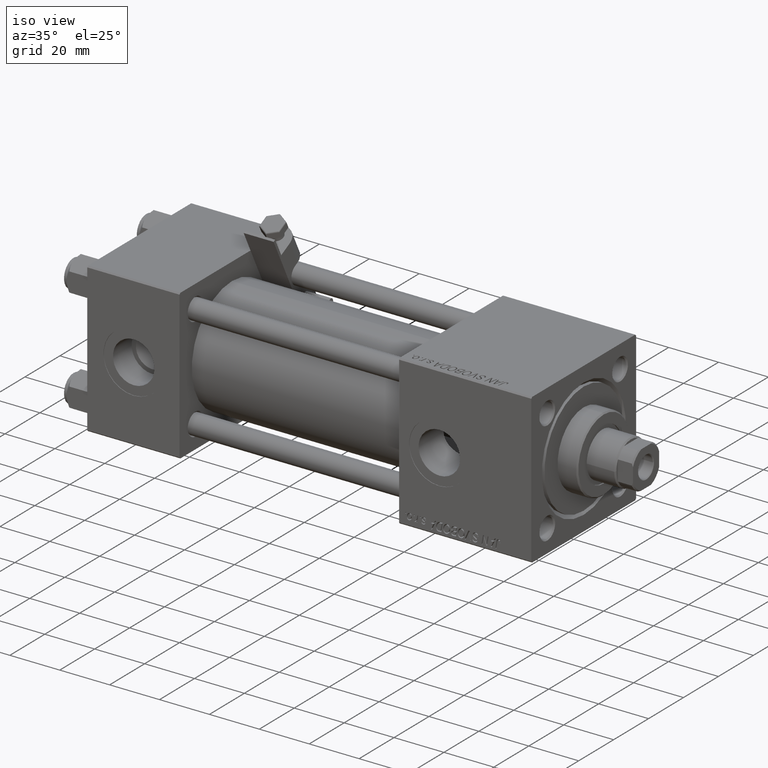
[diagram: clean part render]
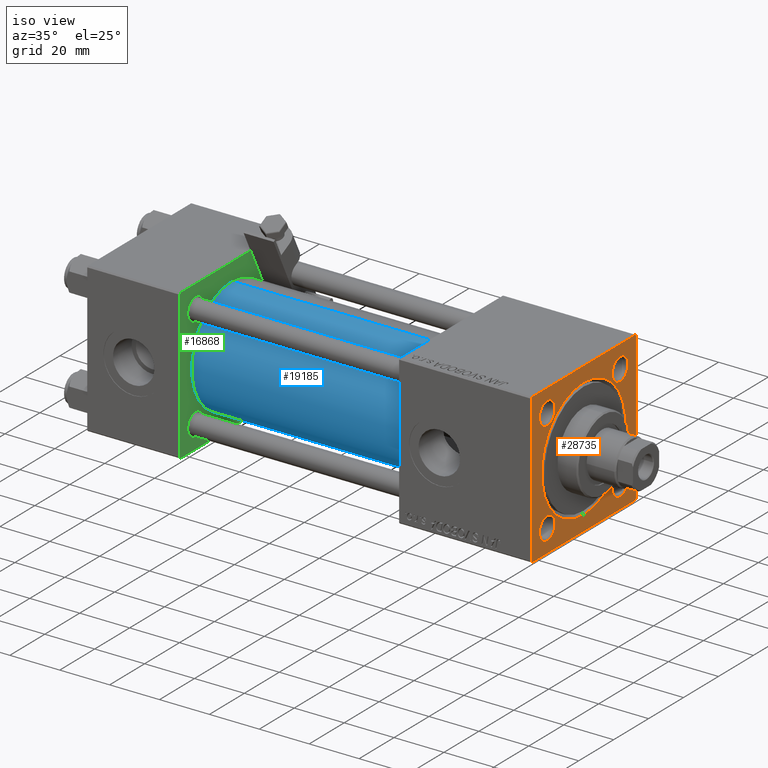
[diagram: same view with three faces highlighted in distinct colors, each labeled with its STEP entity id]
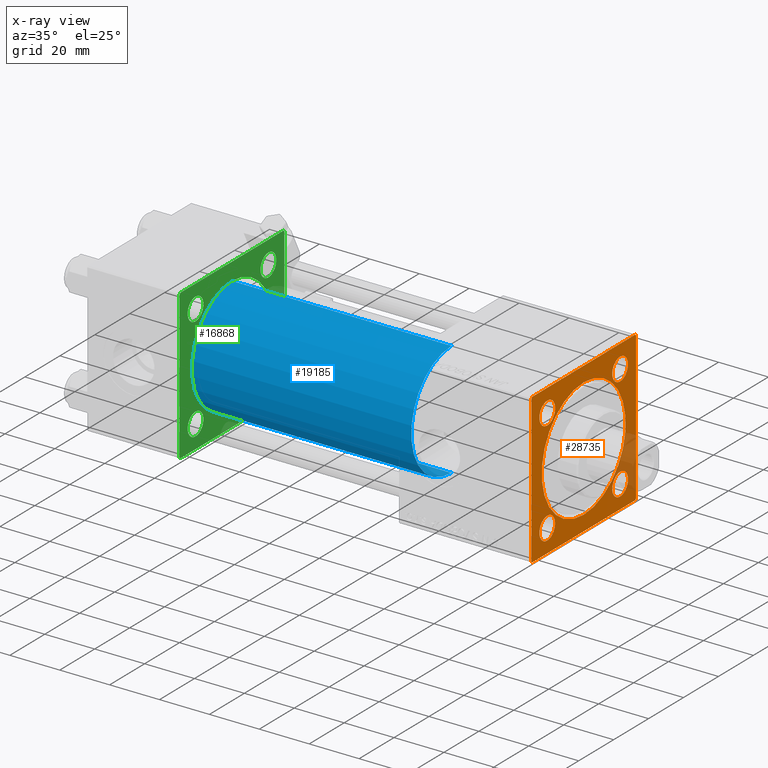
[diagram: x-ray of the same camera — body ghosted, the three highlighted faces saturated]
A machine part, iso view with three faces highlighted in distinct colors.
The next image is the same camera in x-ray (body ghosted, the three faces saturated) — at least one of them is partly hidden behind the body in this view.
Their STEP definitions:

[orange] entity #28735 — the highlighted planar face has unit normal (-1, 0, 0).
#298 = EDGE_CURVE ( 'NONE', #15305, #1166, #24167, .T. ) ;
#885 = VERTEX_POINT ( 'NONE', #18039 ) ;
#1101 = CARTESIAN_POINT ( 'NONE',  ( 178.0000000000000000, 29.49999999999997158, -29.99999999999999289 ) ) ;
#1166 = VERTEX_POINT ( 'NONE', #3669 ) ;
#1480 = VERTEX_POINT ( 'NONE', #7116 ) ;
#1534 = AXIS2_PLACEMENT_3D ( 'NONE', #14978, #42749, #31415 ) ;
#1862 = AXIS2_PLACEMENT_3D ( 'NONE', #2000, #18470, #26821 ) ;
#2000 = CARTESIAN_POINT ( 'NONE',  ( 178.0000000000000000, 20.84999999999999787, 20.85000000000000142 ) ) ;
#2801 = ORIENTED_EDGE ( 'NONE', *, *, #25553, .F. ) ;
#3334 = VECTOR ( 'NONE', #31365, 1000.000000000000000 ) ;
#3370 = EDGE_CURVE ( 'NONE', #37861, #21030, #15692, .T. ) ;
#3371 = DIRECTION ( 'NONE',  ( -0.000000000000000000, 0.000000000000000000, 1.000000000000000000 ) ) ;
#3584 = CARTESIAN_POINT ( 'NONE',  ( 178.0000000000000000, 0.000000000000000000, -23.99999999999999645 ) ) ;
#3669 = CARTESIAN_POINT ( 'NONE',  ( 178.0000000000000000, 30.00000000000000000, -29.49999999999997868 ) ) ;
#3952 = ORIENTED_EDGE ( 'NONE', *, *, #46275, .T. ) ;
#4646 = VERTEX_POINT ( 'NONE', #52857 ) ;
#4659 = DIRECTION ( 'NONE',  ( 0.000000000000000000, -1.000000000000000000, -1.156482317317871478E-16 ) ) ;
#4780 = CARTESIAN_POINT ( 'NONE',  ( 178.0000000000000000, -30.00000000000000000, 29.49999999999999289 ) ) ;
#5016 = ORIENTED_EDGE ( 'NONE', *, *, #31881, .T. ) ;
#5023 = CIRCLE ( 'NONE', #11911, 4.500000000000031974 ) ;
#5660 = AXIS2_PLACEMENT_3D ( 'NONE', #34746, #42843, #21582 ) ;
#6997 = VERTEX_POINT ( 'NONE', #36495 ) ;
#7116 = CARTESIAN_POINT ( 'NONE',  ( 178.0000000000000000, 2.939152317953647500E-15, 23.99999999999999645 ) ) ;
#7398 = CIRCLE ( 'NONE', #40112, 4.500000000000031974 ) ;
#7944 = DIRECTION ( 'NONE',  ( -1.000000000000000000, 0.000000000000000000, -0.000000000000000000 ) ) ;
#8264 = CIRCLE ( 'NONE', #5660, 4.500000000000031974 ) ;
#9997 = LINE ( 'NONE', #26462, #33465 ) ;
#10613 = CARTESIAN_POINT ( 'NONE',  ( 178.0000000000000000, -29.50000000000000000, 29.99999999999999289 ) ) ;
#11179 = FACE_BOUND ( 'NONE', #40923, .T. ) ;
#11716 = CARTESIAN_POINT ( 'NONE',  ( 178.0000000000000000, 0.000000000000000000, 0.000000000000000000 ) ) ;
#11861 = ORIENTED_EDGE ( 'NONE', *, *, #3370, .T. ) ;
#11911 = AXIS2_PLACEMENT_3D ( 'NONE', #50446, #41307, #41573 ) ;
#12866 = DIRECTION ( 'NONE',  ( 0.000000000000000000, 0.000000000000000000, 1.000000000000000000 ) ) ;
#13655 = CARTESIAN_POINT ( 'NONE',  ( 178.0000000000000000, -20.84999999999999432, 20.85000000000000142 ) ) ;
#14518 = CARTESIAN_POINT ( 'NONE',  ( 178.0000000000000000, 20.84999999999999787, 25.35000000000003340 ) ) ;
#14706 = CIRCLE ( 'NONE', #43962, 4.500000000000031974 ) ;
#14978 = CARTESIAN_POINT ( 'NONE',  ( 178.0000000000000000, 0.000000000000000000, 0.000000000000000000 ) ) ;
#15265 = LINE ( 'NONE', #31706, #36336 ) ;
#15305 = VERTEX_POINT ( 'NONE', #1101 ) ;
#15532 = EDGE_CURVE ( 'NONE', #885, #4646, #7398, .T. ) ;
#15692 = CIRCLE ( 'NONE', #1862, 4.500000000000031974 ) ;
#15789 = PLANE ( 'NONE',  #42199 ) ;
#16376 = EDGE_LOOP ( 'NONE', ( #38227, #51896 ) ) ;
#17200 = CARTESIAN_POINT ( 'NONE',  ( 178.0000000000000000, -30.00000000000000000, 29.49999999999999289 ) ) ;
#17379 = VECTOR ( 'NONE', #37157, 1000.000000000000114 ) ;
#17477 = ORIENTED_EDGE ( 'NONE', *, *, #35644, .T. ) ;
#18039 = CARTESIAN_POINT ( 'NONE',  ( 178.0000000000000000, -20.84999999999999432, 25.35000000000003340 ) ) ;
#18232 = DIRECTION ( 'NONE',  ( 0.000000000000000000, 0.000000000000000000, -1.000000000000000000 ) ) ;
#18470 = DIRECTION ( 'NONE',  ( -1.000000000000000000, 0.000000000000000000, -0.000000000000000000 ) ) ;
#18481 = VERTEX_POINT ( 'NONE', #17200 ) ;
#18495 = EDGE_CURVE ( 'NONE', #4646, #885, #47916, .T. ) ;
#18985 = EDGE_LOOP ( 'NONE', ( #3952, #31899 ) ) ;
#19344 = VECTOR ( 'NONE', #20947, 1000.000000000000114 ) ;
#19488 = EDGE_CURVE ( 'NONE', #6997, #32217, #8264, .T. ) ;
#19713 = EDGE_LOOP ( 'NONE', ( #33803, #11861 ) ) ;
#19823 = DIRECTION ( 'NONE',  ( 0.000000000000000000, 0.000000000000000000, 1.000000000000000000 ) ) ;
#19901 = EDGE_LOOP ( 'NONE', ( #5016, #38970, #2801, #37906, #31221, #51496, #31678, #17477 ) ) ;
#20129 = CARTESIAN_POINT ( 'NONE',  ( 178.0000000000000000, 30.00000000000000000, -29.49999999999999289 ) ) ;
#20947 = DIRECTION ( 'NONE',  ( 0.000000000000000000, -0.7071067811865474617, 0.7071067811865474617 ) ) ;
#21005 = CARTESIAN_POINT ( 'NONE',  ( 178.0000000000000000, 20.84999999999999787, -20.85000000000000142 ) ) ;
#21030 = VERTEX_POINT ( 'NONE', #35920 ) ;
#21237 = VERTEX_POINT ( 'NONE', #51419 ) ;
#21466 = VECTOR ( 'NONE', #23798, 1000.000000000000114 ) ;
#21485 = CARTESIAN_POINT ( 'NONE',  ( 178.0000000000000000, -20.84999999999999432, 20.85000000000000142 ) ) ;
#21582 = DIRECTION ( 'NONE',  ( 0.000000000000000000, 0.000000000000000000, 1.000000000000000000 ) ) ;
#21932 = VERTEX_POINT ( 'NONE', #3584 ) ;
#22447 = ORIENTED_EDGE ( 'NONE', *, *, #18495, .T. ) ;
#23013 = CARTESIAN_POINT ( 'NONE',  ( 178.0000000000000000, 30.00000000000000000, 30.00000000000000000 ) ) ;
#23327 = CARTESIAN_POINT ( 'NONE',  ( 178.0000000000000000, -20.85000000000000142, -16.34999999999996945 ) ) ;
#23798 = DIRECTION ( 'NONE',  ( 0.000000000000000000, 0.7071067811865474617, -0.7071067811865474617 ) ) ;
#24167 = LINE ( 'NONE', #20129, #33637 ) ;
#24176 = VERTEX_POINT ( 'NONE', #47052 ) ;
#25038 = DIRECTION ( 'NONE',  ( -1.000000000000000000, 0.000000000000000000, -0.000000000000000000 ) ) ;
#25299 = EDGE_CURVE ( 'NONE', #39896, #33559, #44319, .T. ) ;
#25553 = EDGE_CURVE ( 'NONE', #15305, #21237, #9997, .T. ) ;
#25564 = CARTESIAN_POINT ( 'NONE',  ( 178.0000000000000000, 29.50000000000000000, 30.00000000000000000 ) ) ;
#26462 = CARTESIAN_POINT ( 'NONE',  ( 178.0000000000000000, 30.00000000000000000, -29.99999999999999289 ) ) ;
#26686 = EDGE_CURVE ( 'NONE', #52440, #21237, #31048, .T. ) ;
#26821 = DIRECTION ( 'NONE',  ( 0.000000000000000000, 0.000000000000000000, 1.000000000000000000 ) ) ;
#27144 = EDGE_CURVE ( 'NONE', #1480, #21932, #36135, .T. ) ;
#27366 = VERTEX_POINT ( 'NONE', #23327 ) ;
#28735 = ADVANCED_FACE ( 'NONE', ( #32483, #31406, #43808, #11179, #40049, #40315 ), #15789, .F. ) ;
#29061 = LINE ( 'NONE', #4780, #17379 ) ;
#30109 = DIRECTION ( 'NONE',  ( -1.000000000000000000, 0.000000000000000000, -0.000000000000000000 ) ) ;
#30481 = CIRCLE ( 'NONE', #51144, 4.500000000000031974 ) ;
#31048 = LINE ( 'NONE', #47482, #21466 ) ;
#31221 = ORIENTED_EDGE ( 'NONE', *, *, #35809, .F. ) ;
#31365 = DIRECTION ( 'NONE',  ( 0.000000000000000000, -1.000000000000000000, -1.156482317317871478E-16 ) ) ;
#31406 = FACE_BOUND ( 'NONE', #52620, .T. ) ;
#31415 = DIRECTION ( 'NONE',  ( 0.000000000000000000, 0.000000000000000000, 1.000000000000000000 ) ) ;
#31591 = ORIENTED_EDGE ( 'NONE', *, *, #15532, .T. ) ;
#31678 = ORIENTED_EDGE ( 'NONE', *, *, #25299, .T. ) ;
#31706 = CARTESIAN_POINT ( 'NONE',  ( 178.0000000000000000, 30.00000000000000000, 30.00000000000000000 ) ) ;
#31881 = EDGE_CURVE ( 'NONE', #18481, #52440, #50580, .T. ) ;
#31899 = ORIENTED_EDGE ( 'NONE', *, *, #27144, .T. ) ;
#31976 = DIRECTION ( 'NONE',  ( -0.000000000000000000, 0.7071067811865672237, 0.7071067811865279218 ) ) ;
#32217 = VERTEX_POINT ( 'NONE', #39717 ) ;
#32483 = FACE_BOUND ( 'NONE', #19713, .T. ) ;
#32555 = CIRCLE ( 'NONE', #1534, 23.99999999999999645 ) ;
#33465 = VECTOR ( 'NONE', #4659, 1000.000000000000000 ) ;
#33559 = VERTEX_POINT ( 'NONE', #10613 ) ;
#33573 = VECTOR ( 'NONE', #18232, 1000.000000000000000 ) ;
#33637 = VECTOR ( 'NONE', #31976, 1000.000000000000000 ) ;
#33796 = AXIS2_PLACEMENT_3D ( 'NONE', #44987, #53335, #12866 ) ;
#33803 = ORIENTED_EDGE ( 'NONE', *, *, #46956, .T. ) ;
#33871 = DIRECTION ( 'NONE',  ( -1.000000000000000000, 0.000000000000000000, -0.000000000000000000 ) ) ;
#34037 = EDGE_CURVE ( 'NONE', #32217, #6997, #14706, .T. ) ;
#34746 = CARTESIAN_POINT ( 'NONE',  ( 178.0000000000000000, 20.84999999999999787, -20.85000000000000142 ) ) ;
#35644 = EDGE_CURVE ( 'NONE', #33559, #18481, #29061, .T. ) ;
#35809 = EDGE_CURVE ( 'NONE', #24176, #1166, #15265, .T. ) ;
#35920 = CARTESIAN_POINT ( 'NONE',  ( 178.0000000000000000, 20.84999999999999787, 16.34999999999996945 ) ) ;
#36135 = CIRCLE ( 'NONE', #52495, 23.99999999999999645 ) ;
#36336 = VECTOR ( 'NONE', #48144, 1000.000000000000000 ) ;
#36339 = LINE ( 'NONE', #52779, #19344 ) ;
#36435 = ORIENTED_EDGE ( 'NONE', *, *, #34037, .T. ) ;
#36495 = CARTESIAN_POINT ( 'NONE',  ( 178.0000000000000000, 20.84999999999999787, -16.34999999999996945 ) ) ;
#37157 = DIRECTION ( 'NONE',  ( -0.000000000000000000, -0.7071067811865474617, -0.7071067811865474617 ) ) ;
#37861 = VERTEX_POINT ( 'NONE', #14518 ) ;
#37906 = ORIENTED_EDGE ( 'NONE', *, *, #298, .T. ) ;
#37927 = DIRECTION ( 'NONE',  ( 0.000000000000000000, 0.000000000000000000, 1.000000000000000000 ) ) ;
#37943 = EDGE_CURVE ( 'NONE', #47038, #27366, #38953, .T. ) ;
#38227 = ORIENTED_EDGE ( 'NONE', *, *, #37943, .T. ) ;
#38452 = CARTESIAN_POINT ( 'NONE',  ( 178.0000000000000000, -30.00000000000000000, 29.99999999999999289 ) ) ;
#38953 = CIRCLE ( 'NONE', #33796, 4.500000000000031974 ) ;
#38970 = ORIENTED_EDGE ( 'NONE', *, *, #26686, .T. ) ;
#39249 = ORIENTED_EDGE ( 'NONE', *, *, #19488, .T. ) ;
#39717 = CARTESIAN_POINT ( 'NONE',  ( 178.0000000000000000, 20.84999999999999787, -25.35000000000003340 ) ) ;
#39896 = VERTEX_POINT ( 'NONE', #25564 ) ;
#40049 = FACE_BOUND ( 'NONE', #18985, .T. ) ;
#40112 = AXIS2_PLACEMENT_3D ( 'NONE', #21485, #33871, #37927 ) ;
#40315 = FACE_OUTER_BOUND ( 'NONE', #19901, .T. ) ;
#40923 = EDGE_LOOP ( 'NONE', ( #36435, #39249 ) ) ;
#41307 = DIRECTION ( 'NONE',  ( -1.000000000000000000, 0.000000000000000000, -0.000000000000000000 ) ) ;
#41462 = DIRECTION ( 'NONE',  ( 0.000000000000000000, 0.000000000000000000, 1.000000000000000000 ) ) ;
#41573 = DIRECTION ( 'NONE',  ( 0.000000000000000000, 0.000000000000000000, 1.000000000000000000 ) ) ;
#42199 = AXIS2_PLACEMENT_3D ( 'NONE', #11716, #48390, #3371 ) ;
#42418 = EDGE_CURVE ( 'NONE', #24176, #39896, #36339, .T. ) ;
#42707 = EDGE_CURVE ( 'NONE', #27366, #47038, #30481, .T. ) ;
#42749 = DIRECTION ( 'NONE',  ( -1.000000000000000000, 0.000000000000000000, -0.000000000000000000 ) ) ;
#42843 = DIRECTION ( 'NONE',  ( -1.000000000000000000, 0.000000000000000000, -0.000000000000000000 ) ) ;
#43808 = FACE_BOUND ( 'NONE', #16376, .T. ) ;
#43962 = AXIS2_PLACEMENT_3D ( 'NONE', #21005, #25038, #46304 ) ;
#44319 = LINE ( 'NONE', #23013, #3334 ) ;
#44748 = DIRECTION ( 'NONE',  ( -1.000000000000000000, 0.000000000000000000, -0.000000000000000000 ) ) ;
#44820 = CARTESIAN_POINT ( 'NONE',  ( 178.0000000000000000, -30.00000000000000000, -29.49999999999998579 ) ) ;
#44987 = CARTESIAN_POINT ( 'NONE',  ( 178.0000000000000000, -20.85000000000000142, -20.85000000000000142 ) ) ;
#45887 = CARTESIAN_POINT ( 'NONE',  ( 178.0000000000000000, -20.85000000000000142, -25.35000000000003340 ) ) ;
#46205 = AXIS2_PLACEMENT_3D ( 'NONE', #13655, #30109, #41462 ) ;
#46275 = EDGE_CURVE ( 'NONE', #21932, #1480, #32555, .T. ) ;
#46304 = DIRECTION ( 'NONE',  ( 0.000000000000000000, 0.000000000000000000, 1.000000000000000000 ) ) ;
#46956 = EDGE_CURVE ( 'NONE', #21030, #37861, #5023, .T. ) ;
#47038 = VERTEX_POINT ( 'NONE', #45887 ) ;
#47052 = CARTESIAN_POINT ( 'NONE',  ( 178.0000000000000000, 30.00000000000000000, 29.50000000000000000 ) ) ;
#47482 = CARTESIAN_POINT ( 'NONE',  ( 178.0000000000000000, -29.50000000000000000, -30.00000000000000000 ) ) ;
#47916 = CIRCLE ( 'NONE', #46205, 4.500000000000031974 ) ;
#48144 = DIRECTION ( 'NONE',  ( 0.000000000000000000, 0.000000000000000000, -1.000000000000000000 ) ) ;
#48390 = DIRECTION ( 'NONE',  ( -1.000000000000000000, 0.000000000000000000, -0.000000000000000000 ) ) ;
#49177 = CARTESIAN_POINT ( 'NONE',  ( 178.0000000000000000, -20.85000000000000142, -20.85000000000000142 ) ) ;
#50446 = CARTESIAN_POINT ( 'NONE',  ( 178.0000000000000000, 20.84999999999999787, 20.85000000000000142 ) ) ;
#50580 = LINE ( 'NONE', #38452, #33573 ) ;
#51144 = AXIS2_PLACEMENT_3D ( 'NONE', #49177, #7944, #19823 ) ;
#51419 = CARTESIAN_POINT ( 'NONE',  ( 178.0000000000000000, -29.50000000000000000, -30.00000000000000000 ) ) ;
#51496 = ORIENTED_EDGE ( 'NONE', *, *, #42418, .T. ) ;
#51896 = ORIENTED_EDGE ( 'NONE', *, *, #42707, .T. ) ;
#52297 = DIRECTION ( 'NONE',  ( 0.000000000000000000, 0.000000000000000000, 1.000000000000000000 ) ) ;
#52440 = VERTEX_POINT ( 'NONE', #44820 ) ;
#52495 = AXIS2_PLACEMENT_3D ( 'NONE', #52850, #44748, #52297 ) ;
#52620 = EDGE_LOOP ( 'NONE', ( #22447, #31591 ) ) ;
#52779 = CARTESIAN_POINT ( 'NONE',  ( 178.0000000000000000, 29.50000000000000000, 30.00000000000000000 ) ) ;
#52850 = CARTESIAN_POINT ( 'NONE',  ( 178.0000000000000000, 0.000000000000000000, 0.000000000000000000 ) ) ;
#52857 = CARTESIAN_POINT ( 'NONE',  ( 178.0000000000000000, -20.84999999999999432, 16.34999999999996945 ) ) ;
#53335 = DIRECTION ( 'NONE',  ( -1.000000000000000000, 0.000000000000000000, -0.000000000000000000 ) ) ;

[blue] entity #19185 — the highlighted cylindrical surface (partial cylindrical patch) has radius 23 mm, axis along (-1, -0, -0).
#795 = CARTESIAN_POINT ( 'NONE',  ( 125.0000000000000000, -2.602085213965210642E-15, 0.000000000000000000 ) ) ;
#1861 = VERTEX_POINT ( 'NONE', #31246 ) ;
#4364 = DIRECTION ( 'NONE',  ( -1.000000000000000000, -0.000000000000000000, -0.000000000000000000 ) ) ;
#6495 = CARTESIAN_POINT ( 'NONE',  ( 125.0000000000000000, -2.602085213965210642E-15, 0.000000000000000000 ) ) ;
#7134 = CARTESIAN_POINT ( 'NONE',  ( 125.0000000000000000, 2.146024240737016609E-16, -23.00000000000000000 ) ) ;
#8002 = ORIENTED_EDGE ( 'NONE', *, *, #12111, .T. ) ;
#8994 = CARTESIAN_POINT ( 'NONE',  ( 37.00000000000000711, -2.602085213965210642E-15, 0.000000000000000000 ) ) ;
#9752 = DIRECTION ( 'NONE',  ( 0.000000000000000000, 0.000000000000000000, 1.000000000000000000 ) ) ;
#12111 = EDGE_CURVE ( 'NONE', #48690, #37676, #51990, .T. ) ;
#12562 = AXIS2_PLACEMENT_3D ( 'NONE', #6495, #50478, #9752 ) ;
#17270 = CARTESIAN_POINT ( 'NONE',  ( 125.0000000000000000, -2.602085213965210642E-15, 23.00000000000000000 ) ) ;
#17785 = DIRECTION ( 'NONE',  ( 0.000000000000000000, 0.000000000000000000, -1.000000000000000000 ) ) ;
#17861 = FACE_OUTER_BOUND ( 'NONE', #37730, .T. ) ;
#18433 = AXIS2_PLACEMENT_3D ( 'NONE', #8994, #29225, #29751 ) ;
#19185 = ADVANCED_FACE ( 'NONE', ( #17861 ), #30770, .T. ) ;
#20800 = LINE ( 'NONE', #17270, #32524 ) ;
#22092 = DIRECTION ( 'NONE',  ( 1.000000000000000000, 0.000000000000000000, 0.000000000000000000 ) ) ;
#23140 = EDGE_CURVE ( 'NONE', #1861, #34499, #28213, .T. ) ;
#23949 = AXIS2_PLACEMENT_3D ( 'NONE', #795, #22092, #17785 ) ;
#25344 = ORIENTED_EDGE ( 'NONE', *, *, #23140, .F. ) ;
#27095 = ORIENTED_EDGE ( 'NONE', *, *, #50333, .F. ) ;
#28213 = CIRCLE ( 'NONE', #23949, 23.00000000000000000 ) ;
#29225 = DIRECTION ( 'NONE',  ( 1.000000000000000000, -0.000000000000000000, 0.000000000000000000 ) ) ;
#29392 = CARTESIAN_POINT ( 'NONE',  ( 37.00000000000000711, 2.146024240737016609E-16, -23.00000000000000000 ) ) ;
#29751 = DIRECTION ( 'NONE',  ( 0.000000000000000000, 0.000000000000000000, 1.000000000000000000 ) ) ;
#30770 = CYLINDRICAL_SURFACE ( 'NONE', #12562, 23.00000000000000000 ) ;
#31246 = CARTESIAN_POINT ( 'NONE',  ( 125.0000000000000000, -2.602085213965210642E-15, 23.00000000000000000 ) ) ;
#32524 = VECTOR ( 'NONE', #33703, 1000.000000000000000 ) ;
#32552 = VECTOR ( 'NONE', #4364, 1000.000000000000000 ) ;
#33703 = DIRECTION ( 'NONE',  ( -1.000000000000000000, -0.000000000000000000, -0.000000000000000000 ) ) ;
#34499 = VERTEX_POINT ( 'NONE', #7134 ) ;
#37676 = VERTEX_POINT ( 'NONE', #29392 ) ;
#37730 = EDGE_LOOP ( 'NONE', ( #27095, #25344, #43342, #8002 ) ) ;
#40784 = LINE ( 'NONE', #49389, #32552 ) ;
#43294 = CARTESIAN_POINT ( 'NONE',  ( 37.00000000000000711, -2.602085213965210642E-15, 23.00000000000000000 ) ) ;
#43342 = ORIENTED_EDGE ( 'NONE', *, *, #46050, .T. ) ;
#46050 = EDGE_CURVE ( 'NONE', #1861, #48690, #20800, .T. ) ;
#48690 = VERTEX_POINT ( 'NONE', #43294 ) ;
#49389 = CARTESIAN_POINT ( 'NONE',  ( 125.0000000000000000, 2.146024240737016609E-16, -23.00000000000000000 ) ) ;
#50333 = EDGE_CURVE ( 'NONE', #34499, #37676, #40784, .T. ) ;
#50478 = DIRECTION ( 'NONE',  ( -1.000000000000000000, -0.000000000000000000, -0.000000000000000000 ) ) ;
#51990 = CIRCLE ( 'NONE', #18433, 23.00000000000000000 ) ;

[green] entity #16868 — the highlighted planar face has unit normal (-1, 0, 0).
#138 = CARTESIAN_POINT ( 'NONE',  ( 37.00000000000000000, -30.00000000000000000, 29.49999999999999289 ) ) ;
#443 = EDGE_CURVE ( 'NONE', #10620, #12231, #12121, .T. ) ;
#716 = DIRECTION ( 'NONE',  ( -1.000000000000000000, 0.000000000000000000, -0.000000000000000000 ) ) ;
#1825 = CARTESIAN_POINT ( 'NONE',  ( 37.00000000000000000, -29.50000000000001066, -30.00000000000000711 ) ) ;
#1865 = ORIENTED_EDGE ( 'NONE', *, *, #27703, .F. ) ;
#1930 = EDGE_LOOP ( 'NONE', ( #38873, #17114 ) ) ;
#2176 = ORIENTED_EDGE ( 'NONE', *, *, #38756, .F. ) ;
#2980 = CARTESIAN_POINT ( 'NONE',  ( 37.00000000000000000, -20.84999999999999076, -20.85000000000000497 ) ) ;
#3012 = ORIENTED_EDGE ( 'NONE', *, *, #29826, .T. ) ;
#3089 = EDGE_CURVE ( 'NONE', #33326, #47180, #46644, .T. ) ;
#3291 = DIRECTION ( 'NONE',  ( 0.000000000000000000, 0.000000000000000000, 1.000000000000000000 ) ) ;
#3558 = ORIENTED_EDGE ( 'NONE', *, *, #14057, .T. ) ;
#3753 = AXIS2_PLACEMENT_3D ( 'NONE', #11354, #22953, #31853 ) ;
#4249 = AXIS2_PLACEMENT_3D ( 'NONE', #43139, #31538, #11035 ) ;
#4739 = VECTOR ( 'NONE', #25358, 1000.000000000000114 ) ;
#4990 = CIRCLE ( 'NONE', #15311, 4.500000000000003553 ) ;
#5397 = CARTESIAN_POINT ( 'NONE',  ( 37.00000000000000000, 20.84999999999999787, 20.85000000000000142 ) ) ;
#6962 = FACE_OUTER_BOUND ( 'NONE', #9903, .T. ) ;
#7417 = EDGE_CURVE ( 'NONE', #39026, #9915, #22339, .T. ) ;
#8225 = EDGE_CURVE ( 'NONE', #41214, #9915, #43093, .T. ) ;
#8232 = LINE ( 'NONE', #138, #34984 ) ;
#8273 = EDGE_LOOP ( 'NONE', ( #35155, #1865 ) ) ;
#8943 = DIRECTION ( 'NONE',  ( -1.000000000000000000, 0.000000000000000000, -0.000000000000000000 ) ) ;
#8994 = CARTESIAN_POINT ( 'NONE',  ( 37.00000000000000711, -2.602085213965210642E-15, 0.000000000000000000 ) ) ;
#9350 = DIRECTION ( 'NONE',  ( -0.000000000000000000, 0.7071067811865574537, 0.7071067811865376918 ) ) ;
#9903 = EDGE_LOOP ( 'NONE', ( #19158, #38423, #2176, #3558, #3012, #44977, #32746, #52814 ) ) ;
#9915 = VERTEX_POINT ( 'NONE', #22769 ) ;
#10620 = VERTEX_POINT ( 'NONE', #45191 ) ;
#10728 = DIRECTION ( 'NONE',  ( 0.000000000000000000, -1.000000000000000000, -1.156482317317871725E-16 ) ) ;
#11035 = DIRECTION ( 'NONE',  ( 0.000000000000000000, 0.000000000000000000, 1.000000000000000000 ) ) ;
#11354 = CARTESIAN_POINT ( 'NONE',  ( 37.00000000000000000, 20.84999999999999787, -20.85000000000000142 ) ) ;
#12111 = EDGE_CURVE ( 'NONE', #48690, #37676, #51990, .T. ) ;
#12121 = CIRCLE ( 'NONE', #25907, 4.500000000000003553 ) ;
#12231 = VERTEX_POINT ( 'NONE', #20028 ) ;
#12412 = DIRECTION ( 'NONE',  ( 0.000000000000000000, 0.000000000000000000, 1.000000000000000000 ) ) ;
#12774 = CARTESIAN_POINT ( 'NONE',  ( 37.00000000000000000, 29.99999999999999289, 30.00000000000000000 ) ) ;
#12946 = CARTESIAN_POINT ( 'NONE',  ( 37.00000000000000000, 20.84999999999999787, -20.85000000000000142 ) ) ;
#13092 = ORIENTED_EDGE ( 'NONE', *, *, #443, .T. ) ;
#13375 = DIRECTION ( 'NONE',  ( 0.000000000000000000, 0.000000000000000000, 1.000000000000000000 ) ) ;
#13477 = DIRECTION ( 'NONE',  ( -1.000000000000000000, 0.000000000000000000, -0.000000000000000000 ) ) ;
#13773 = CARTESIAN_POINT ( 'NONE',  ( 37.00000000000000000, 20.84999999999999787, -25.35000000000000497 ) ) ;
#14057 = EDGE_CURVE ( 'NONE', #34769, #22049, #16744, .T. ) ;
#14300 = CARTESIAN_POINT ( 'NONE',  ( 37.00000000000000000, 20.84999999999999787, 25.35000000000000497 ) ) ;
#14486 = VECTOR ( 'NONE', #38243, 1000.000000000000000 ) ;
#15311 = AXIS2_PLACEMENT_3D ( 'NONE', #52892, #24571, #15964 ) ;
#15332 = FACE_BOUND ( 'NONE', #35041, .T. ) ;
#15964 = DIRECTION ( 'NONE',  ( 0.000000000000000000, 0.000000000000000000, 1.000000000000000000 ) ) ;
#16223 = CARTESIAN_POINT ( 'NONE',  ( 37.00000000000000000, 29.99999999999999289, 30.00000000000000000 ) ) ;
#16744 = LINE ( 'NONE', #39253, #4739 ) ;
#16750 = DIRECTION ( 'NONE',  ( -1.000000000000000000, 0.000000000000000000, -0.000000000000000000 ) ) ;
#16868 = ADVANCED_FACE ( 'NONE', ( #47927, #15332, #27462, #43902, #27744, #6962 ), #44181, .F. ) ;
#17114 = ORIENTED_EDGE ( 'NONE', *, *, #47763, .T. ) ;
#17622 = CARTESIAN_POINT ( 'NONE',  ( 37.00000000000000000, 29.99999999999999289, 29.50000000000000000 ) ) ;
#17714 = EDGE_CURVE ( 'NONE', #41214, #22649, #49819, .T. ) ;
#18433 = AXIS2_PLACEMENT_3D ( 'NONE', #8994, #29225, #29751 ) ;
#18694 = CARTESIAN_POINT ( 'NONE',  ( 37.00000000000000000, 29.99999999999999289, -29.50000000000000000 ) ) ;
#19133 = CARTESIAN_POINT ( 'NONE',  ( 37.00000000000000000, -20.84999999999999076, 16.35000000000000142 ) ) ;
#19158 = ORIENTED_EDGE ( 'NONE', *, *, #8225, .F. ) ;
#19163 = CARTESIAN_POINT ( 'NONE',  ( 37.00000000000000000, 29.49999999999999289, 30.00000000000000000 ) ) ;
#20028 = CARTESIAN_POINT ( 'NONE',  ( 37.00000000000000000, -20.84999999999999076, -25.35000000000000853 ) ) ;
#20132 = CIRCLE ( 'NONE', #3753, 4.500000000000003553 ) ;
#20379 = DIRECTION ( 'NONE',  ( -0.000000000000000000, -0.7071067811865474617, -0.7071067811865474617 ) ) ;
#20645 = CARTESIAN_POINT ( 'NONE',  ( 37.00000000000000000, -20.84999999999999076, 25.35000000000000853 ) ) ;
#21316 = EDGE_CURVE ( 'NONE', #41722, #48866, #52251, .T. ) ;
#21497 = AXIS2_PLACEMENT_3D ( 'NONE', #36740, #53171, #3291 ) ;
#21859 = DIRECTION ( 'NONE',  ( 0.000000000000000000, 0.000000000000000000, 1.000000000000000000 ) ) ;
#22049 = VERTEX_POINT ( 'NONE', #19163 ) ;
#22149 = AXIS2_PLACEMENT_3D ( 'NONE', #50324, #716, #13375 ) ;
#22339 = LINE ( 'NONE', #1825, #39913 ) ;
#22649 = VERTEX_POINT ( 'NONE', #18694 ) ;
#22769 = CARTESIAN_POINT ( 'NONE',  ( 37.00000000000000000, -29.50000000000000000, -30.00000000000000711 ) ) ;
#22953 = DIRECTION ( 'NONE',  ( -1.000000000000000000, 0.000000000000000000, -0.000000000000000000 ) ) ;
#23434 = DIRECTION ( 'NONE',  ( -0.000000000000000000, 0.000000000000000000, 1.000000000000000000 ) ) ;
#23508 = LINE ( 'NONE', #16223, #24391 ) ;
#23599 = CARTESIAN_POINT ( 'NONE',  ( 37.00000000000000000, -29.49999999999998579, 29.99999999999999289 ) ) ;
#24082 = ORIENTED_EDGE ( 'NONE', *, *, #45863, .T. ) ;
#24391 = VECTOR ( 'NONE', #32651, 1000.000000000000000 ) ;
#24571 = DIRECTION ( 'NONE',  ( -1.000000000000000000, 0.000000000000000000, -0.000000000000000000 ) ) ;
#25136 = CARTESIAN_POINT ( 'NONE',  ( 37.00000000000000000, -20.84999999999999076, 20.85000000000000497 ) ) ;
#25233 = CIRCLE ( 'NONE', #28697, 4.500000000000003553 ) ;
#25358 = DIRECTION ( 'NONE',  ( 0.000000000000000000, -0.7071067811865474617, 0.7071067811865474617 ) ) ;
#25907 = AXIS2_PLACEMENT_3D ( 'NONE', #2980, #52055, #31018 ) ;
#27230 = CARTESIAN_POINT ( 'NONE',  ( 37.00000000000000000, 20.84999999999999787, -16.34999999999999787 ) ) ;
#27462 = FACE_BOUND ( 'NONE', #32959, .T. ) ;
#27703 = EDGE_CURVE ( 'NONE', #37676, #48690, #33536, .T. ) ;
#27744 = FACE_BOUND ( 'NONE', #8273, .T. ) ;
#28275 = DIRECTION ( 'NONE',  ( -1.000000000000000000, 0.000000000000000000, -0.000000000000000000 ) ) ;
#28697 = AXIS2_PLACEMENT_3D ( 'NONE', #12946, #16750, #12412 ) ;
#29225 = DIRECTION ( 'NONE',  ( 1.000000000000000000, -0.000000000000000000, 0.000000000000000000 ) ) ;
#29392 = CARTESIAN_POINT ( 'NONE',  ( 37.00000000000000711, 2.146024240737016609E-16, -23.00000000000000000 ) ) ;
#29705 = ORIENTED_EDGE ( 'NONE', *, *, #52795, .T. ) ;
#29751 = DIRECTION ( 'NONE',  ( 0.000000000000000000, 0.000000000000000000, 1.000000000000000000 ) ) ;
#29826 = EDGE_CURVE ( 'NONE', #22049, #34497, #43535, .T. ) ;
#30457 = VERTEX_POINT ( 'NONE', #27230 ) ;
#31018 = DIRECTION ( 'NONE',  ( 0.000000000000000000, 0.000000000000000000, 1.000000000000000000 ) ) ;
#31082 = CARTESIAN_POINT ( 'NONE',  ( 37.00000000000000000, -30.00000000000000000, 29.49999999999999289 ) ) ;
#31538 = DIRECTION ( 'NONE',  ( -1.000000000000000000, 0.000000000000000000, -0.000000000000000000 ) ) ;
#31853 = DIRECTION ( 'NONE',  ( 0.000000000000000000, 0.000000000000000000, 1.000000000000000000 ) ) ;
#32597 = CIRCLE ( 'NONE', #22149, 4.500000000000003553 ) ;
#32651 = DIRECTION ( 'NONE',  ( 0.000000000000000000, 0.000000000000000000, -1.000000000000000000 ) ) ;
#32746 = ORIENTED_EDGE ( 'NONE', *, *, #46514, .T. ) ;
#32959 = EDGE_LOOP ( 'NONE', ( #46929, #24082 ) ) ;
#33326 = VERTEX_POINT ( 'NONE', #35490 ) ;
#33536 = CIRCLE ( 'NONE', #21497, 23.00000000000000000 ) ;
#34497 = VERTEX_POINT ( 'NONE', #23599 ) ;
#34720 = DIRECTION ( 'NONE',  ( 0.000000000000000000, 0.7071067811865474617, -0.7071067811865474617 ) ) ;
#34769 = VERTEX_POINT ( 'NONE', #17622 ) ;
#34984 = VECTOR ( 'NONE', #20379, 1000.000000000000114 ) ;
#35041 = EDGE_LOOP ( 'NONE', ( #40521, #38308 ) ) ;
#35155 = ORIENTED_EDGE ( 'NONE', *, *, #12111, .F. ) ;
#35490 = CARTESIAN_POINT ( 'NONE',  ( 37.00000000000000000, 20.84999999999999787, 16.34999999999999787 ) ) ;
#36519 = VECTOR ( 'NONE', #9350, 999.9999999999998863 ) ;
#36740 = CARTESIAN_POINT ( 'NONE',  ( 37.00000000000000711, -2.602085213965210642E-15, 0.000000000000000000 ) ) ;
#37676 = VERTEX_POINT ( 'NONE', #29392 ) ;
#37890 = CARTESIAN_POINT ( 'NONE',  ( 37.00000000000000000, -30.00000000000000000, -29.50000000000001776 ) ) ;
#38243 = DIRECTION ( 'NONE',  ( 0.000000000000000000, 0.000000000000000000, -1.000000000000000000 ) ) ;
#38308 = ORIENTED_EDGE ( 'NONE', *, *, #40684, .T. ) ;
#38423 = ORIENTED_EDGE ( 'NONE', *, *, #17714, .T. ) ;
#38694 = CIRCLE ( 'NONE', #4249, 4.500000000000003553 ) ;
#38756 = EDGE_CURVE ( 'NONE', #34769, #22649, #23508, .T. ) ;
#38788 = CARTESIAN_POINT ( 'NONE',  ( 37.00000000000000000, 29.99999999999999289, -30.00000000000000000 ) ) ;
#38811 = EDGE_CURVE ( 'NONE', #51143, #30457, #25233, .T. ) ;
#38873 = ORIENTED_EDGE ( 'NONE', *, *, #3089, .T. ) ;
#39026 = VERTEX_POINT ( 'NONE', #37890 ) ;
#39253 = CARTESIAN_POINT ( 'NONE',  ( 37.00000000000000000, 29.49999999999999289, 30.00000000000000000 ) ) ;
#39656 = EDGE_LOOP ( 'NONE', ( #29705, #13092 ) ) ;
#39813 = CARTESIAN_POINT ( 'NONE',  ( 37.00000000000000000, 29.49999999999997868, -30.00000000000000000 ) ) ;
#39913 = VECTOR ( 'NONE', #34720, 1000.000000000000114 ) ;
#39958 = VECTOR ( 'NONE', #10728, 1000.000000000000000 ) ;
#40521 = ORIENTED_EDGE ( 'NONE', *, *, #38811, .T. ) ;
#40678 = CARTESIAN_POINT ( 'NONE',  ( 37.00000000000000000, 0.000000000000000000, 0.000000000000000000 ) ) ;
#40684 = EDGE_CURVE ( 'NONE', #30457, #51143, #20132, .T. ) ;
#41097 = DIRECTION ( 'NONE',  ( 0.000000000000000000, -1.000000000000000000, -1.156482317317871725E-16 ) ) ;
#41195 = CARTESIAN_POINT ( 'NONE',  ( 37.00000000000000000, 29.99999999999999289, -29.50000000000000000 ) ) ;
#41214 = VERTEX_POINT ( 'NONE', #39813 ) ;
#41722 = VERTEX_POINT ( 'NONE', #19133 ) ;
#42803 = CARTESIAN_POINT ( 'NONE',  ( 37.00000000000000000, -30.00000000000000000, 29.99999999999999289 ) ) ;
#43093 = LINE ( 'NONE', #38788, #39958 ) ;
#43139 = CARTESIAN_POINT ( 'NONE',  ( 37.00000000000000000, -20.84999999999999076, -20.85000000000000497 ) ) ;
#43294 = CARTESIAN_POINT ( 'NONE',  ( 37.00000000000000711, -2.602085213965210642E-15, 23.00000000000000000 ) ) ;
#43535 = LINE ( 'NONE', #12774, #49126 ) ;
#43659 = VERTEX_POINT ( 'NONE', #31082 ) ;
#43682 = AXIS2_PLACEMENT_3D ( 'NONE', #40678, #28275, #23434 ) ;
#43902 = FACE_BOUND ( 'NONE', #1930, .T. ) ;
#44181 = PLANE ( 'NONE',  #43682 ) ;
#44330 = EDGE_CURVE ( 'NONE', #34497, #43659, #8232, .T. ) ;
#44977 = ORIENTED_EDGE ( 'NONE', *, *, #44330, .T. ) ;
#45191 = CARTESIAN_POINT ( 'NONE',  ( 37.00000000000000000, -20.84999999999999076, -16.35000000000000142 ) ) ;
#45863 = EDGE_CURVE ( 'NONE', #48866, #41722, #4990, .T. ) ;
#46514 = EDGE_CURVE ( 'NONE', #43659, #39026, #47363, .T. ) ;
#46644 = CIRCLE ( 'NONE', #48382, 4.500000000000003553 ) ;
#46929 = ORIENTED_EDGE ( 'NONE', *, *, #21316, .T. ) ;
#47180 = VERTEX_POINT ( 'NONE', #14300 ) ;
#47363 = LINE ( 'NONE', #42803, #14486 ) ;
#47763 = EDGE_CURVE ( 'NONE', #47180, #33326, #32597, .T. ) ;
#47927 = FACE_BOUND ( 'NONE', #39656, .T. ) ;
#48382 = AXIS2_PLACEMENT_3D ( 'NONE', #5397, #13477, #21859 ) ;
#48690 = VERTEX_POINT ( 'NONE', #43294 ) ;
#48866 = VERTEX_POINT ( 'NONE', #20645 ) ;
#49126 = VECTOR ( 'NONE', #41097, 1000.000000000000000 ) ;
#49670 = AXIS2_PLACEMENT_3D ( 'NONE', #25136, #8943, #51687 ) ;
#49819 = LINE ( 'NONE', #41195, #36519 ) ;
#50324 = CARTESIAN_POINT ( 'NONE',  ( 37.00000000000000000, 20.84999999999999787, 20.85000000000000142 ) ) ;
#51143 = VERTEX_POINT ( 'NONE', #13773 ) ;
#51687 = DIRECTION ( 'NONE',  ( 0.000000000000000000, 0.000000000000000000, 1.000000000000000000 ) ) ;
#51990 = CIRCLE ( 'NONE', #18433, 23.00000000000000000 ) ;
#52055 = DIRECTION ( 'NONE',  ( -1.000000000000000000, 0.000000000000000000, -0.000000000000000000 ) ) ;
#52251 = CIRCLE ( 'NONE', #49670, 4.500000000000003553 ) ;
#52795 = EDGE_CURVE ( 'NONE', #12231, #10620, #38694, .T. ) ;
#52814 = ORIENTED_EDGE ( 'NONE', *, *, #7417, .T. ) ;
#52892 = CARTESIAN_POINT ( 'NONE',  ( 37.00000000000000000, -20.84999999999999076, 20.85000000000000497 ) ) ;
#53171 = DIRECTION ( 'NONE',  ( 1.000000000000000000, -0.000000000000000000, 0.000000000000000000 ) ) ;